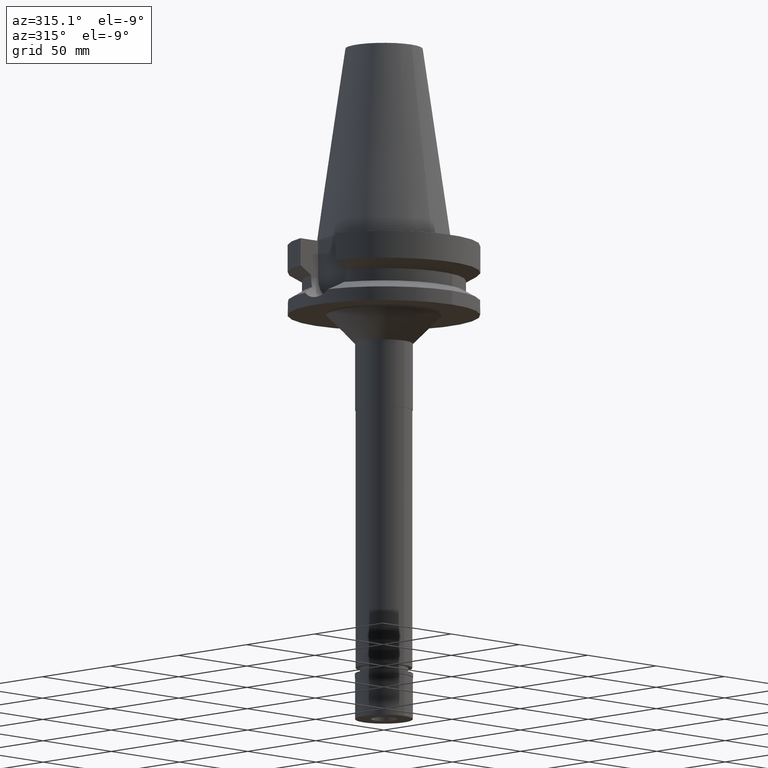
[diagram: clean part render]
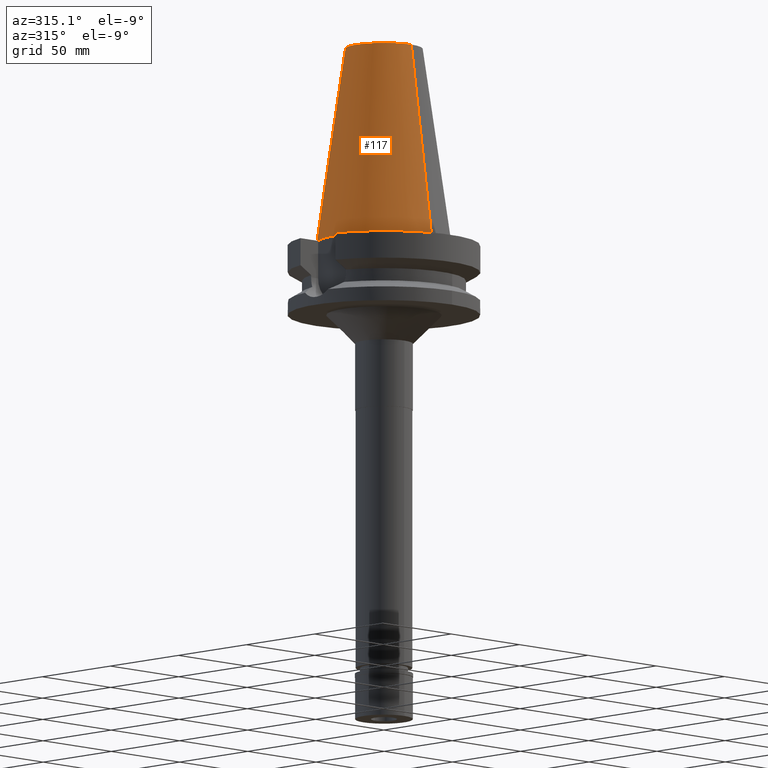
[diagram: same view with one face highlighted and labeled with its STEP entity id]
A machine part, auxiliary view. The second image highlights one B-rep face of the part: STEP entity #117.
In plain terms, the highlighted conical surface has half-angle 8.297 deg.
Its self-contained STEP definition (entity closure, byte-faithful):
#42 = FACE_OUTER_BOUND ( 'NONE', #2112, .T. ) ;
#117 = ADVANCED_FACE ( 'NONE', ( #42 ), #3102, .T. ) ;
#133 = VERTEX_POINT ( 'NONE', #2789 ) ;
#251 = VERTEX_POINT ( 'NONE', #1121 ) ;
#338 = CIRCLE ( 'NONE', #2448, 20.07942971896000017 ) ;
#387 = CIRCLE ( 'NONE', #600, 34.92499999999999716 ) ;
#533 = DIRECTION ( 'NONE',  ( 0.0000000000000000000, 0.1443043893538948075, -0.9895333461855641000 ) ) ;
#548 = LINE ( 'NONE', #1565, #923 ) ;
#573 = CARTESIAN_POINT ( 'NONE',  ( 0.0000000000000000000, 34.92499999999999716, 5.400124791776999712E-13 ) ) ;
#600 = AXIS2_PLACEMENT_3D ( 'NONE', #1717, #1229, #910 ) ;
#704 = EDGE_CURVE ( 'NONE', #251, #1619, #387, .T. ) ;
#708 = CARTESIAN_POINT ( 'NONE',  ( 0.0000000000000000000, 1.847992019912999597E-14, 101.7999999999999972 ) ) ;
#844 = ORIENTED_EDGE ( 'NONE', *, *, #1331, .T. ) ;
#910 = DIRECTION ( 'NONE',  ( 0.0000000000000000000, -1.000000000000000000, 0.0000000000000000000 ) ) ;
#923 = VECTOR ( 'NONE', #1311, 1000.000000000000114 ) ;
#979 = ORIENTED_EDGE ( 'NONE', *, *, #1814, .F. ) ;
#1030 = LINE ( 'NONE', #3028, #2078 ) ;
#1047 = VERTEX_POINT ( 'NONE', #2529 ) ;
#1121 = CARTESIAN_POINT ( 'NONE',  ( 0.0000000000000000000, -34.92499999999999716, 5.400124791776999712E-13 ) ) ;
#1229 = DIRECTION ( 'NONE',  ( 0.0000000000000000000, 0.0000000000000000000, -1.000000000000000000 ) ) ;
#1311 = DIRECTION ( 'NONE',  ( 0.0000000000000000000, -0.1443043893538948075, -0.9895333461855641000 ) ) ;
#1331 = EDGE_CURVE ( 'NONE', #133, #1047, #338, .T. ) ;
#1476 = DIRECTION ( 'NONE',  ( 0.0000000000000000000, 0.0000000000000000000, -1.000000000000000000 ) ) ;
#1565 = CARTESIAN_POINT ( 'NONE',  ( 0.0000000000000000000, -20.07942971896000017, 101.7999999999999972 ) ) ;
#1619 = VERTEX_POINT ( 'NONE', #573 ) ;
#1717 = CARTESIAN_POINT ( 'NONE',  ( 0.0000000000000000000, 1.847992019912999597E-14, 3.979039320256999774E-13 ) ) ;
#1749 = DIRECTION ( 'NONE',  ( 0.0000000000000000000, -1.000000000000000000, 0.0000000000000000000 ) ) ;
#1814 = EDGE_CURVE ( 'NONE', #133, #251, #548, .T. ) ;
#1912 = ORIENTED_EDGE ( 'NONE', *, *, #704, .F. ) ;
#1933 = EDGE_CURVE ( 'NONE', #1047, #1619, #1030, .T. ) ;
#2037 = CARTESIAN_POINT ( 'NONE',  ( 0.0000000000000000000, 1.847992019912999597E-14, 50.89999999999999858 ) ) ;
#2078 = VECTOR ( 'NONE', #533, 1000.000000000000114 ) ;
#2110 = AXIS2_PLACEMENT_3D ( 'NONE', #2037, #1476, #1749 ) ;
#2112 = EDGE_LOOP ( 'NONE', ( #1912, #979, #844, #3004 ) ) ;
#2206 = DIRECTION ( 'NONE',  ( 0.0000000000000000000, -1.000000000000000000, 0.0000000000000000000 ) ) ;
#2448 = AXIS2_PLACEMENT_3D ( 'NONE', #708, #2503, #2206 ) ;
#2503 = DIRECTION ( 'NONE',  ( 0.0000000000000000000, 0.0000000000000000000, -1.000000000000000000 ) ) ;
#2529 = CARTESIAN_POINT ( 'NONE',  ( 0.0000000000000000000, 20.07942971896000017, 101.7999999999999972 ) ) ;
#2789 = CARTESIAN_POINT ( 'NONE',  ( 0.0000000000000000000, -20.07942971896000017, 101.7999999999999972 ) ) ;
#3004 = ORIENTED_EDGE ( 'NONE', *, *, #1933, .T. ) ;
#3028 = CARTESIAN_POINT ( 'NONE',  ( 0.0000000000000000000, 20.07942971896000017, 101.7999999999999972 ) ) ;
#3102 = CONICAL_SURFACE ( 'NONE', #2110, 27.50221485948000222, 0.1448099680379422438 ) ;